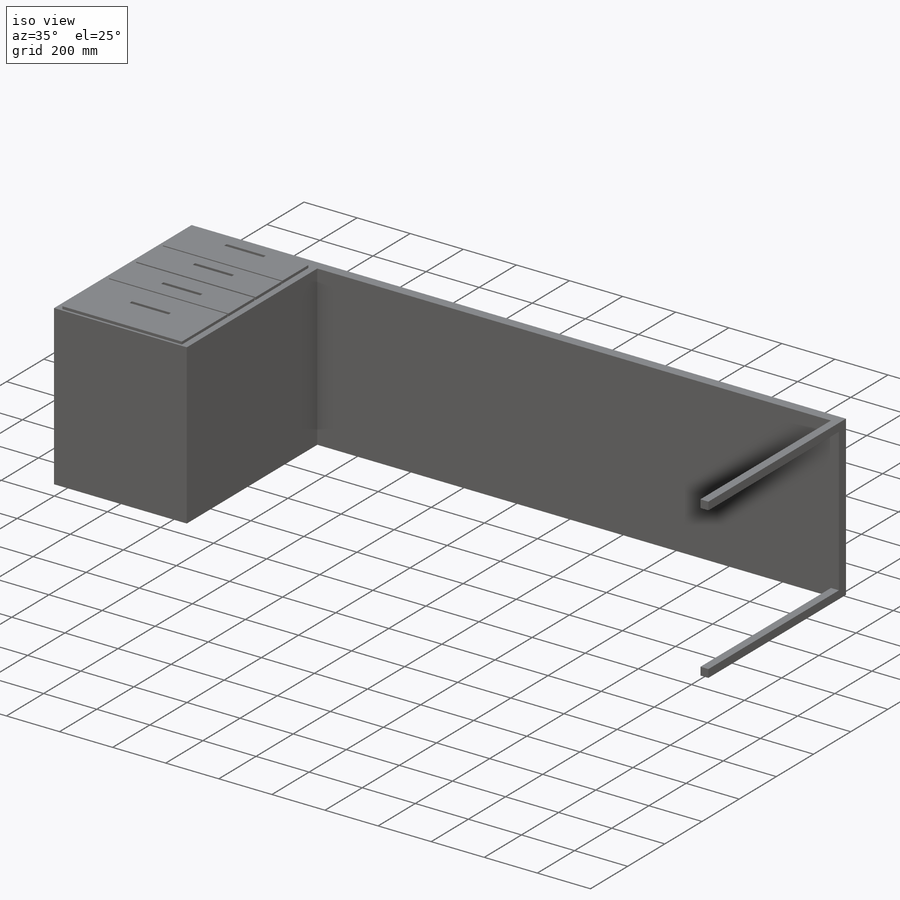
[diagram: iso view]
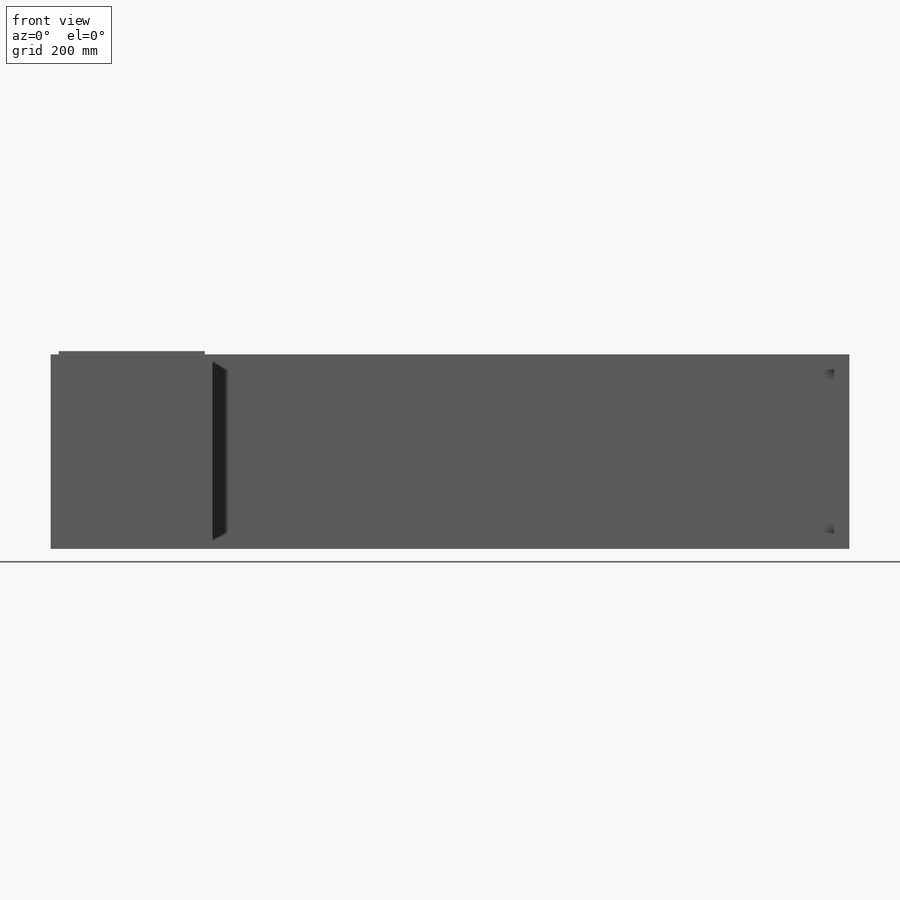
[diagram: front view]
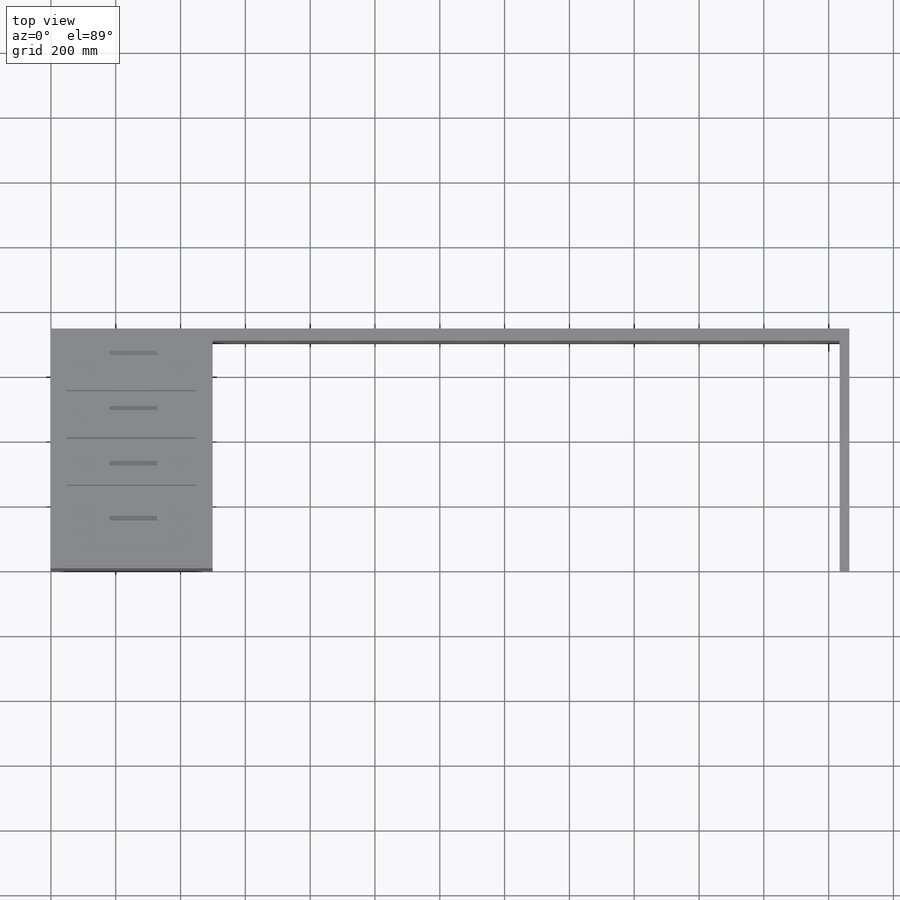
[diagram: top view]
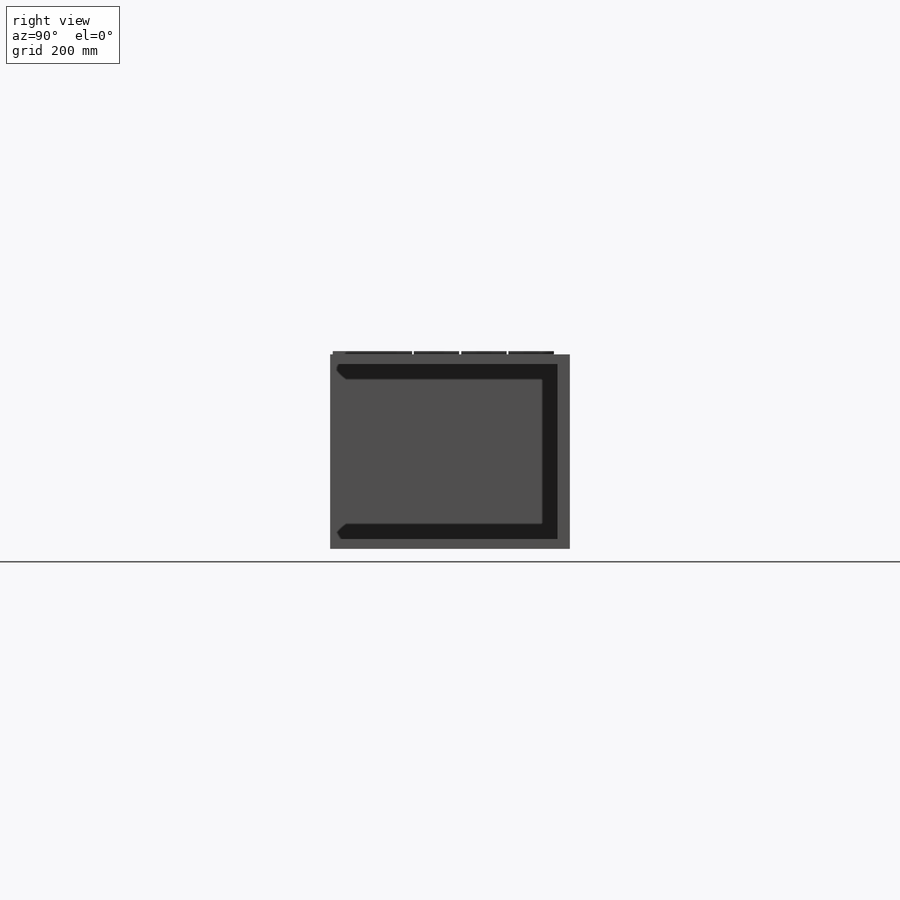
[diagram: right view]
SOLIDWORKS PART (.sldprt)
format: sldprt  version: not decoded by parser v0  size: 223,232 bytes
history: native  units: mm
features: sketch x3, extrude x3, material x1 (+12 scaffold rows collapsed)
feature tree (19):
  scaffold x12  (default folders/planes/origin — collapsed)
  material  "Material <not specified>"
  sketch  "Sketch1"  dims[c1.D1=900.0mm c1.D2=740.0mm c1.D3=2465.0mm c1.D4=500.0mm c1.D5=900.0mm c2.D2=740.0mm c2.D5=500.0mm]
  extrude  "Boss-Extrude1"  Depth=600mm
  sketch  "Sketch2"  dims[c1.D1=~127.602063mm c1.D2=~463.362997mm c2.D1=150.0mm c2.D2=450.0mm c2.D3=~24.998725mm c2.D4=~25.001275mm c2.D5=50.0mm c2.D6=150.0mm c3.D1=140.0mm c3.D6=~656.898242mm c3.D7=~443.204971mm c4.D6=~21.550879mm c4.D7=~44.989016mm c5.D6=~13.581682mm c5.D7=~146.913439mm c5.D4=~5.210488mm c6.D6=245.0mm]
  extrude  "Boss-Extrude2"  Depth=10mm
  sketch  "Sketch3"  dims[D1=30.0mm D2=30.0mm D3=30.0mm D4=30.0mm D5=30.0mm]
  extrude  "Boss-Extrude3"  [1 undecoded]
decode coverage: 5 of 6 modeling features carry decoded parameters
note: ~ marks probable driven/reference dimensions
note: 1 parameter value undecoded
note: suppression state not decoded; provenance and decode notes live in map.json
